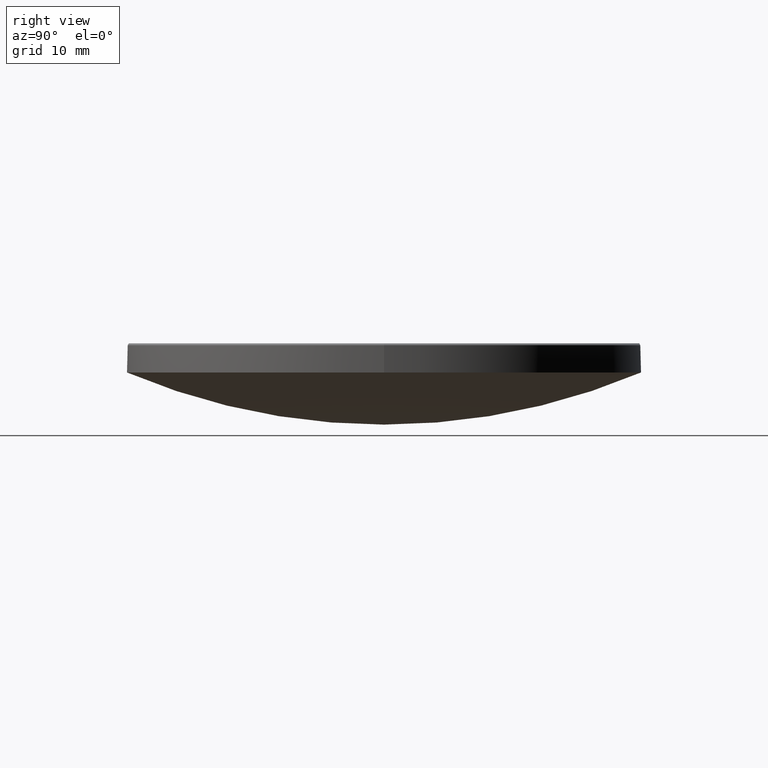
[diagram: clean part render]
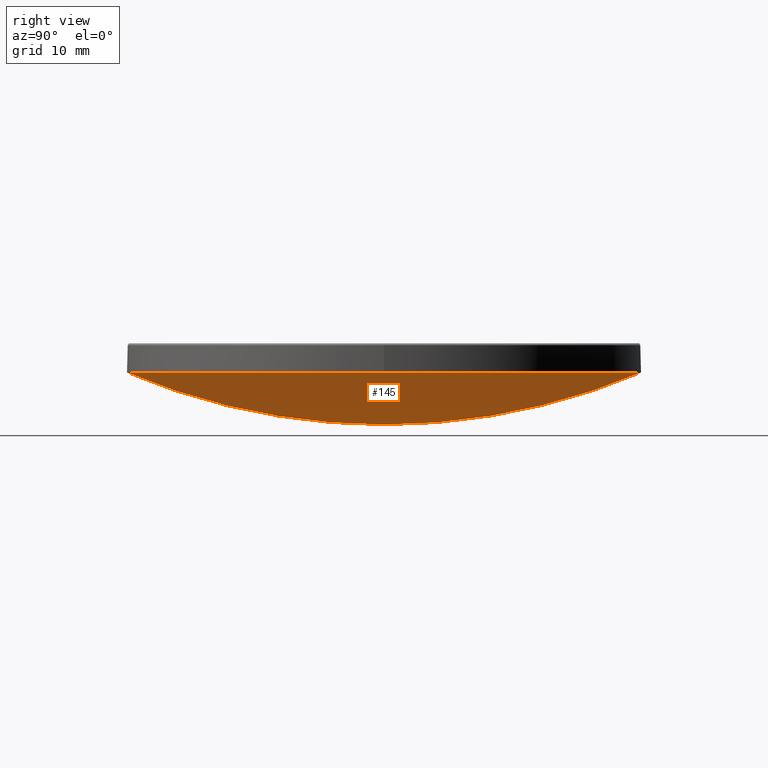
[diagram: same view with one face highlighted and labeled with its STEP entity id]
A machine part, right view. The second image highlights one B-rep face of the part: STEP entity #145.
In plain terms, the highlighted spherical surface has radius 65.16 mm.
Its self-contained STEP definition (entity closure, byte-faithful):
#2 = CARTESIAN_POINT ( 'NONE',  ( 0.000000000000000000, 0.000000000000000000, 73.00554641031111203 ) ) ;
#9 = AXIS2_PLACEMENT_3D ( 'NONE', #42, #233, #34 ) ;
#20 = AXIS2_PLACEMENT_3D ( 'NONE', #270, #249, #204 ) ;
#26 = CARTESIAN_POINT ( 'NONE',  ( -3.110602869834275682E-15, -25.39999999999998437, 12.99999999999999822 ) ) ;
#33 = CARTESIAN_POINT ( 'NONE',  ( 25.39999999999999503, 3.110602869834276471E-15, 13.00000000000000000 ) ) ;
#34 = DIRECTION ( 'NONE',  ( 0.000000000000000000, 0.000000000000000000, -1.000000000000000000 ) ) ;
#36 = VERTEX_POINT ( 'NONE', #33 ) ;
#38 = ORIENTED_EDGE ( 'NONE', *, *, #86, .F. ) ;
#39 = AXIS2_PLACEMENT_3D ( 'NONE', #149, #277, #166 ) ;
#41 = VERTEX_POINT ( 'NONE', #90 ) ;
#42 = CARTESIAN_POINT ( 'NONE',  ( 0.000000000000000000, 0.000000000000000000, 73.00554641031111203 ) ) ;
#50 = AXIS2_PLACEMENT_3D ( 'NONE', #64, #61, #160 ) ;
#53 = SPHERICAL_SURFACE ( 'NONE', #92, 65.15999999999999659 ) ;
#61 = DIRECTION ( 'NONE',  ( -0.000000000000000000, -0.000000000000000000, 1.000000000000000000 ) ) ;
#64 = CARTESIAN_POINT ( 'NONE',  ( 0.000000000000000000, 0.000000000000000000, 13.00000000000000000 ) ) ;
#86 = EDGE_CURVE ( 'NONE', #41, #194, #122, .T. ) ;
#90 = CARTESIAN_POINT ( 'NONE',  ( 0.000000000000000000, 3.989899271622076049E-15, 7.845546410311113661 ) ) ;
#92 = AXIS2_PLACEMENT_3D ( 'NONE', #2, #118, #126 ) ;
#102 = ORIENTED_EDGE ( 'NONE', *, *, #230, .F. ) ;
#118 = DIRECTION ( 'NONE',  ( -1.000000000000000000, 0.000000000000000000, 0.000000000000000000 ) ) ;
#122 = CIRCLE ( 'NONE', #39, 65.15999999999999659 ) ;
#126 = DIRECTION ( 'NONE',  ( 0.000000000000000000, 1.000000000000000000, 0.000000000000000000 ) ) ;
#135 = CIRCLE ( 'NONE', #9, 65.15999999999999659 ) ;
#139 = CIRCLE ( 'NONE', #20, 25.39999999999999503 ) ;
#145 = ADVANCED_FACE ( 'NONE', ( #243 ), #53, .T. ) ;
#148 = EDGE_LOOP ( 'NONE', ( #38, #199, #102, #217 ) ) ;
#149 = CARTESIAN_POINT ( 'NONE',  ( 0.000000000000000000, 0.000000000000000000, 73.00554641031111203 ) ) ;
#156 = EDGE_CURVE ( 'NONE', #41, #240, #135, .T. ) ;
#160 = DIRECTION ( 'NONE',  ( 1.000000000000000000, 0.000000000000000000, 0.000000000000000000 ) ) ;
#166 = DIRECTION ( 'NONE',  ( -1.224646799147352961E-16, -1.000000000000000000, 0.000000000000000000 ) ) ;
#184 = CIRCLE ( 'NONE', #50, 25.39999999999999503 ) ;
#194 = VERTEX_POINT ( 'NONE', #26 ) ;
#199 = ORIENTED_EDGE ( 'NONE', *, *, #156, .T. ) ;
#204 = DIRECTION ( 'NONE',  ( 1.000000000000000000, 0.000000000000000000, 0.000000000000000000 ) ) ;
#217 = ORIENTED_EDGE ( 'NONE', *, *, #237, .F. ) ;
#225 = CARTESIAN_POINT ( 'NONE',  ( 0.000000000000000000, 25.39999999999998437, 12.99999999999999822 ) ) ;
#230 = EDGE_CURVE ( 'NONE', #36, #240, #139, .T. ) ;
#233 = DIRECTION ( 'NONE',  ( 1.000000000000000000, -0.000000000000000000, 0.000000000000000000 ) ) ;
#237 = EDGE_CURVE ( 'NONE', #194, #36, #184, .T. ) ;
#240 = VERTEX_POINT ( 'NONE', #225 ) ;
#243 = FACE_OUTER_BOUND ( 'NONE', #148, .T. ) ;
#249 = DIRECTION ( 'NONE',  ( -0.000000000000000000, -0.000000000000000000, 1.000000000000000000 ) ) ;
#270 = CARTESIAN_POINT ( 'NONE',  ( 0.000000000000000000, 0.000000000000000000, 13.00000000000000000 ) ) ;
#277 = DIRECTION ( 'NONE',  ( -1.000000000000000000, 1.224646799147353207E-16, 0.000000000000000000 ) ) ;